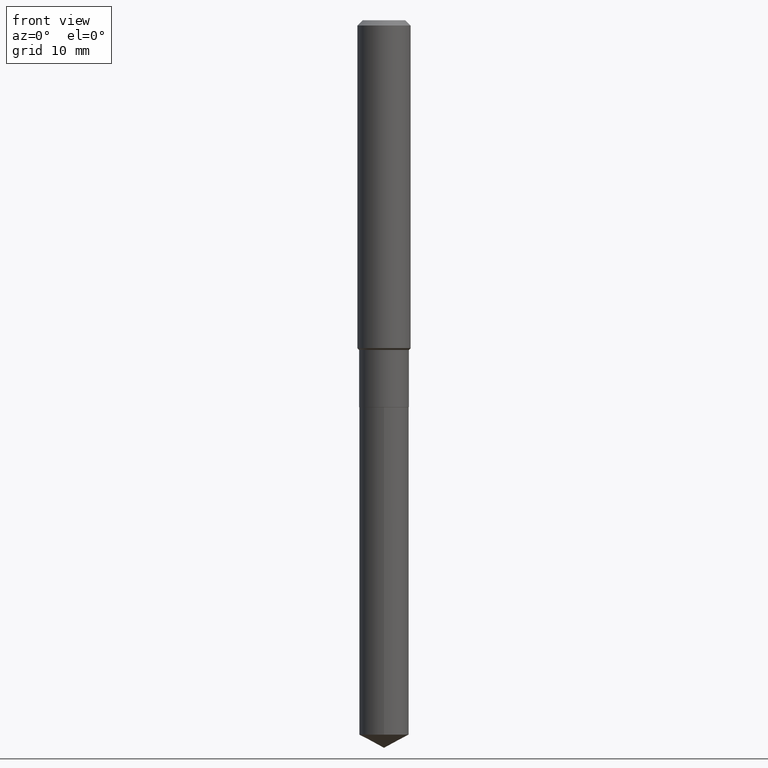
[diagram: clean part render]
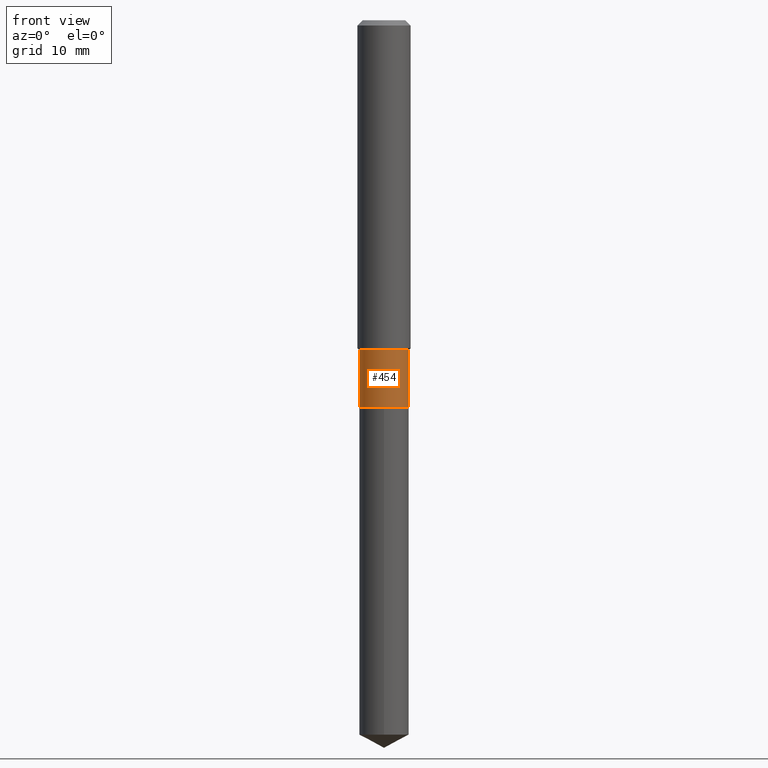
[diagram: same view with one face highlighted and labeled with its STEP entity id]
A machine part, front view. The second image highlights one B-rep face of the part: STEP entity #454.
In plain terms, the highlighted cylindrical surface (edge-blend (fillet) strip) has radius 2.8003 mm, axis along (-0, 0, 1).
Its self-contained STEP definition (entity closure, byte-faithful):
#8 = AXIS2_PLACEMENT_3D ( 'NONE', #356, #353, #18 ) ;
#10 = CARTESIAN_POINT ( 'NONE',  ( -0.1102500000000000008, -4.766161647848728017E-15, -1.716000000000000192 ) ) ;
#12 = CIRCLE ( 'NONE', #234, 0.1102499999999999730 ) ;
#13 = EDGE_CURVE ( 'NONE', #433, #245, #105, .T. ) ;
#18 = DIRECTION ( 'NONE',  ( 1.000000000000000000, -6.982962677686266711E-15, 4.876176775795936353E-29 ) ) ;
#29 = DIRECTION ( 'NONE',  ( -2.445468806185136597E-29, 3.491481338843145583E-15, 1.000000000000000000 ) ) ;
#31 = DIRECTION ( 'NONE',  ( 1.000000000000000000, -6.982962677686270655E-15, 0.000000000000000000 ) ) ;
#36 = DIRECTION ( 'NONE',  ( -2.445468806185136877E-29, 3.491481338843145188E-15, 1.000000000000000000 ) ) ;
#43 = EDGE_CURVE ( 'NONE', #245, #166, #12, .T. ) ;
#55 = CYLINDRICAL_SURFACE ( 'NONE', #8, 0.1102499999999999869 ) ;
#66 = CIRCLE ( 'NONE', #335, 0.1102500000000000008 ) ;
#92 = FACE_OUTER_BOUND ( 'NONE', #360, .T. ) ;
#94 = CARTESIAN_POINT ( 'NONE',  ( 0.1102500000000000008, -6.761253612669749957E-15, -1.716000000000000192 ) ) ;
#105 = LINE ( 'NONE', #365, #207 ) ;
#133 = LINE ( 'NONE', #283, #239 ) ;
#166 = VERTEX_POINT ( 'NONE', #437 ) ;
#207 = VECTOR ( 'NONE', #36, 39.37007874015748143 ) ;
#210 = DIRECTION ( 'NONE',  ( -2.445468806185136877E-29, 3.491481338843145188E-15, 1.000000000000000000 ) ) ;
#234 = AXIS2_PLACEMENT_3D ( 'NONE', #435, #29, #31 ) ;
#239 = VECTOR ( 'NONE', #210, 39.37007874015748143 ) ;
#245 = VERTEX_POINT ( 'NONE', #418 ) ;
#262 = DIRECTION ( 'NONE',  ( -2.445468806185136597E-29, 3.491481338843145583E-15, 1.000000000000000000 ) ) ;
#277 = ORIENTED_EDGE ( 'NONE', *, *, #13, .F. ) ;
#283 = CARTESIAN_POINT ( 'NONE',  ( 0.1102499999999999869, -7.698716352149107826E-16, 5.375984895315018903E-30 ) ) ;
#335 = AXIS2_PLACEMENT_3D ( 'NONE', #385, #262, #345 ) ;
#340 = EDGE_CURVE ( 'NONE', #433, #467, #66, .T. ) ;
#345 = DIRECTION ( 'NONE',  ( 1.000000000000000000, -6.982962677686269077E-15, 0.000000000000000000 ) ) ;
#353 = DIRECTION ( 'NONE',  ( -2.445468806185136597E-29, 3.491481338843145583E-15, 1.000000000000000000 ) ) ;
#356 = CARTESIAN_POINT ( 'NONE',  ( 0.000000000000000000, 0.000000000000000000, 0.000000000000000000 ) ) ;
#360 = EDGE_LOOP ( 'NONE', ( #277, #412, #470, #460 ) ) ;
#365 = CARTESIAN_POINT ( 'NONE',  ( -0.1102499999999999869, 7.833733661755103618E-16, -5.423125937006033469E-30 ) ) ;
#385 = CARTESIAN_POINT ( 'NONE',  ( 4.196424471413695360E-29, -5.991381977454838484E-15, -1.716000000000000192 ) ) ;
#412 = ORIENTED_EDGE ( 'NONE', *, *, #340, .T. ) ;
#418 = CARTESIAN_POINT ( 'NONE',  ( -0.1102499999999999730, -4.766161647848728017E-15, -1.462900000000000089 ) ) ;
#433 = VERTEX_POINT ( 'NONE', #10 ) ;
#435 = CARTESIAN_POINT ( 'NONE',  ( 3.577476316568236178E-29, -5.107688050593637879E-15, -1.462900000000000089 ) ) ;
#437 = CARTESIAN_POINT ( 'NONE',  ( 0.1102499999999999730, -5.877559685808549352E-15, -1.462900000000000089 ) ) ;
#454 = ADVANCED_FACE ( 'NONE', ( #92 ), #55, .T. ) ;
#460 = ORIENTED_EDGE ( 'NONE', *, *, #43, .F. ) ;
#467 = VERTEX_POINT ( 'NONE', #94 ) ;
#470 = ORIENTED_EDGE ( 'NONE', *, *, #482, .T. ) ;
#482 = EDGE_CURVE ( 'NONE', #467, #166, #133, .T. ) ;